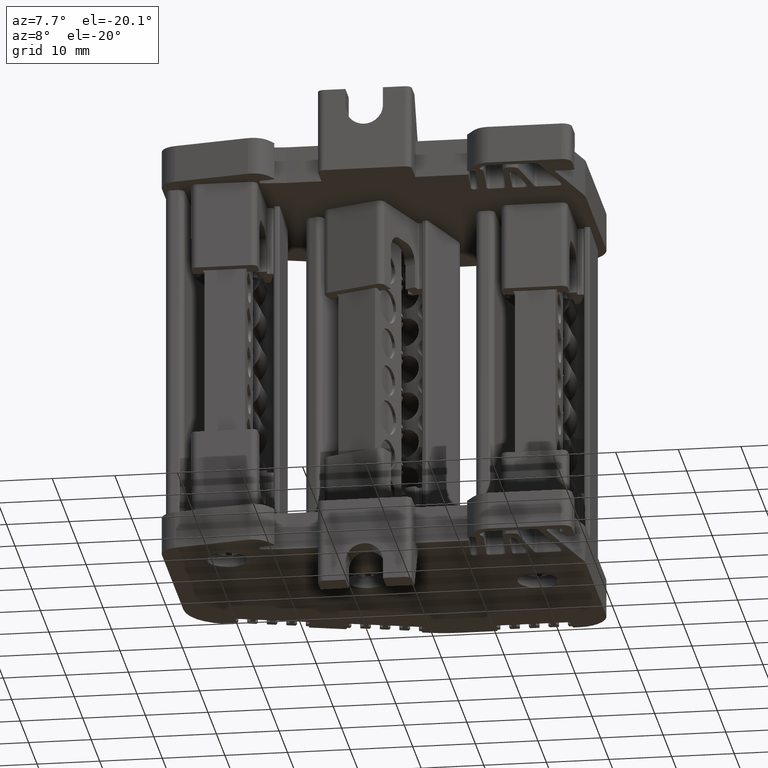
[diagram: clean part render]
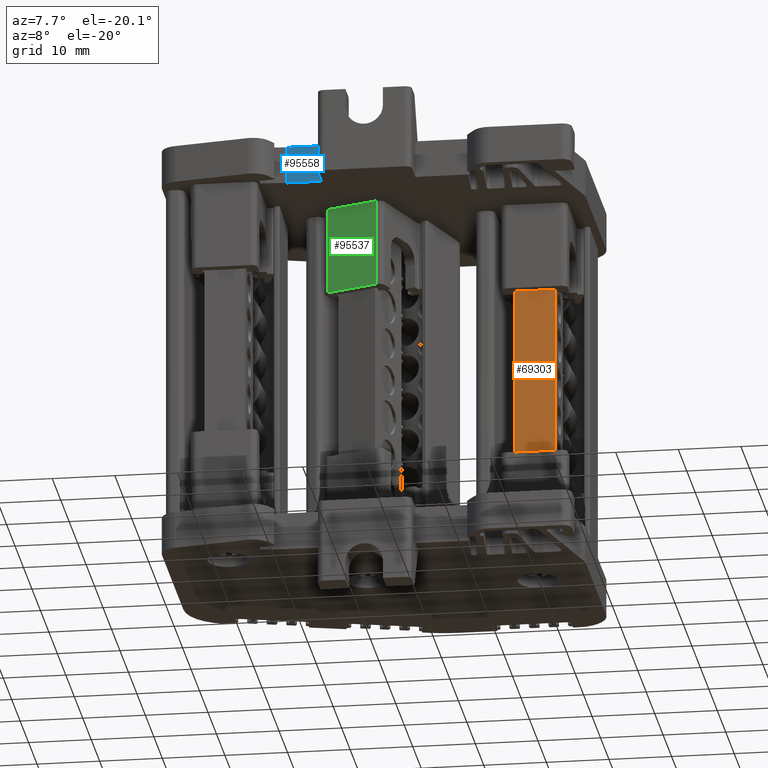
[diagram: same view with three faces highlighted in distinct colors, each labeled with its STEP entity id]
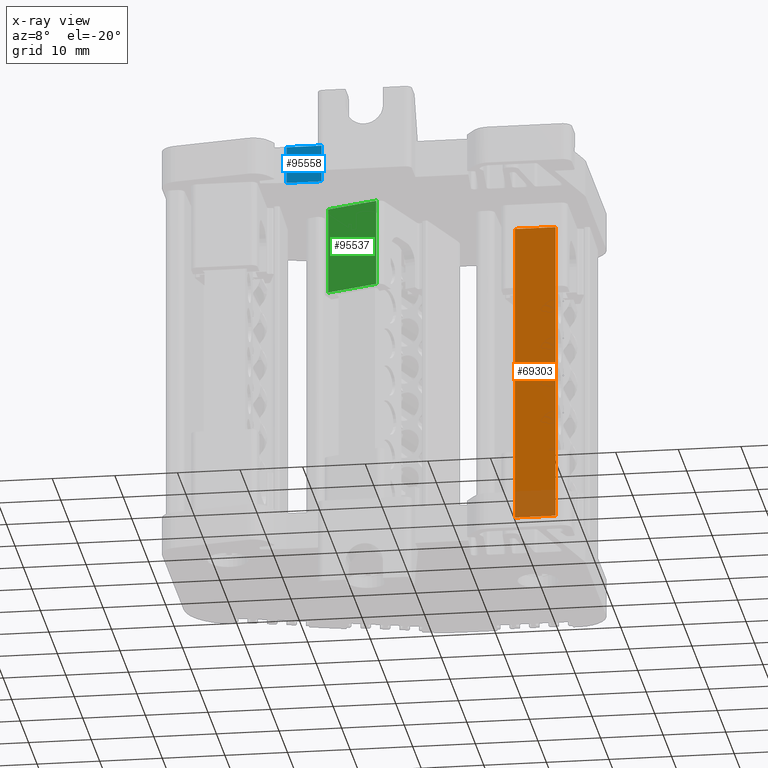
[diagram: x-ray of the same camera — body ghosted, the three highlighted faces saturated]
A machine part, auxiliary view with three faces highlighted in distinct colors.
The next image is the same camera in x-ray (body ghosted, the three faces saturated) — at least one of them is partly hidden behind the body in this view.
Their STEP definitions:

[orange] entity #69303 — the highlighted planar face has unit normal (-0, 1, 0).
#4964 = DIRECTION ( 'NONE',  ( -4.035105583000131400E-013, 1.000000000000000000, 1.333128052394274400E-012 ) ) ;
#5011 = CARTESIAN_POINT ( 'NONE',  ( -270.2292477643139300, 208.4865885413713000, 96.78362721550070100 ) ) ;
#5018 = FACE_OUTER_BOUND ( 'NONE', #78508, .T. ) ;
#5032 = DIRECTION ( 'NONE',  ( 0.0000000000000000000, -1.333128052394274400E-012, 1.000000000000000000 ) ) ;
#5038 = PLANE ( 'NONE',  #23439 ) ;
#14625 = VECTOR ( 'NONE', #92120, 1000.000000000000000 ) ;
#14716 = VECTOR ( 'NONE', #91129, 1000.000000000000000 ) ;
#14754 = VECTOR ( 'NONE', #91184, 1000.000000000000000 ) ;
#15467 = ORIENTED_EDGE ( 'NONE', *, *, #60839, .F. ) ;
#16480 = ORIENTED_EDGE ( 'NONE', *, *, #60794, .T. ) ;
#16488 = ORIENTED_EDGE ( 'NONE', *, *, #60833, .F. ) ;
#16520 = ORIENTED_EDGE ( 'NONE', *, *, #71500, .F. ) ;
#23439 = AXIS2_PLACEMENT_3D ( 'NONE', #5011, #4964, #5032 ) ;
#33512 = VECTOR ( 'NONE', #34422, 1000.000000000000000 ) ;
#34358 = LINE ( 'NONE', #34454, #33512 ) ;
#34422 = DIRECTION ( 'NONE',  ( 1.000000000000000000, 4.035105583000131400E-013, 5.379312447070228400E-025 ) ) ;
#34454 = CARTESIAN_POINT ( 'NONE',  ( -270.2292477643139300, 208.4865885413713000, 96.78362721550070100 ) ) ;
#36823 = VERTEX_POINT ( 'NONE', #85727 ) ;
#36834 = VERTEX_POINT ( 'NONE', #85643 ) ;
#50799 = CARTESIAN_POINT ( 'NONE',  ( -270.2292477643156300, 208.4865885414361100, 48.14122990646641400 ) ) ;
#50842 = CARTESIAN_POINT ( 'NONE',  ( -276.7292477643140400, 208.4865885414348600, 48.14122990646641400 ) ) ;
#60794 = EDGE_CURVE ( 'NONE', #75402, #36823, #92096, .T. ) ;
#60833 = EDGE_CURVE ( 'NONE', #75402, #75468, #91141, .T. ) ;
#60839 = EDGE_CURVE ( 'NONE', #75468, #36834, #91175, .T. ) ;
#69303 = ADVANCED_FACE ( 'NONE', ( #5018 ), #5038, .F. ) ;
#71500 = EDGE_CURVE ( 'NONE', #36834, #36823, #34358, .T. ) ;
#75402 = VERTEX_POINT ( 'NONE', #50799 ) ;
#75468 = VERTEX_POINT ( 'NONE', #50842 ) ;
#78508 = EDGE_LOOP ( 'NONE', ( #16480, #16520, #15467, #16488 ) ) ;
#85643 = CARTESIAN_POINT ( 'NONE',  ( -276.7292477643140400, 208.4865885413903200, 96.78362721550070100 ) ) ;
#85727 = CARTESIAN_POINT ( 'NONE',  ( -270.2292477643139300, 208.4865885414145300, 96.78362721550070100 ) ) ;
#91124 = CARTESIAN_POINT ( 'NONE',  ( -270.4169902369251300, 208.4865885414361300, 48.14122990646641400 ) ) ;
#91129 = DIRECTION ( 'NONE',  ( -1.000000000000000000, 2.763709470186517000E-032, 3.469446951942104800E-018 ) ) ;
#91141 = LINE ( 'NONE', #91124, #14716 ) ;
#91169 = CARTESIAN_POINT ( 'NONE',  ( -276.7292477643140400, 208.4865885413686900, 96.78362721550070100 ) ) ;
#91175 = LINE ( 'NONE', #91169, #14754 ) ;
#91184 = DIRECTION ( 'NONE',  ( 0.0000000000000000000, -1.333128052394274400E-012, 1.000000000000000000 ) ) ;
#92096 = LINE ( 'NONE', #92100, #14625 ) ;
#92100 = CARTESIAN_POINT ( 'NONE',  ( -270.2292477643139300, 208.4865885414361300, 96.78362721551269500 ) ) ;
#92120 = DIRECTION ( 'NONE',  ( -5.048709793414475600E-028, -2.037207707435419100E-040, 1.000000000000000000 ) ) ;

[blue] entity #95558 — the highlighted planar face has unit normal (-0, -1, 0).
#2423 = VERTEX_POINT ( 'NONE', #44019 ) ;
#2425 = VERTEX_POINT ( 'NONE', #44054 ) ;
#3784 = EDGE_CURVE ( 'NONE', #2423, #2425, #94939, .T. ) ;
#4644 = EDGE_CURVE ( 'NONE', #2425, #16405, #56925, .T. ) ;
#4649 = EDGE_CURVE ( 'NONE', #2423, #16395, #56991, .T. ) ;
#4741 = EDGE_CURVE ( 'NONE', #16405, #16395, #39268, .T. ) ;
#16395 = VERTEX_POINT ( 'NONE', #64494 ) ;
#16405 = VERTEX_POINT ( 'NONE', #64470 ) ;
#37848 = EDGE_LOOP ( 'NONE', ( #79576, #79613, #77737, #77736 ) ) ;
#39268 = B_SPLINE_CURVE_WITH_KNOTS ( 'NONE', 3,
 ( #57107, #57131, #57132, #57133 ),
 .UNSPECIFIED., .F., .F.,
 ( 4, 4 ),
 ( 0.0000000000000000000, 1.000000000000000000 ),
 .UNSPECIFIED. ) ;
#44019 = CARTESIAN_POINT ( 'NONE',  ( -305.3899390484841100, 192.1430531581702300, 106.3124285608489600 ) ) ;
#44054 = CARTESIAN_POINT ( 'NONE',  ( -310.9649196473989200, 192.1430531581704300, 106.3124285608489600 ) ) ;
#45139 = CARTESIAN_POINT ( 'NONE',  ( -309.1065927810939800, 192.1430531581706000, 106.3124285608489600 ) ) ;
#45150 = CARTESIAN_POINT ( 'NONE',  ( -307.2482659147889900, 192.1430531581705700, 106.3124285608489600 ) ) ;
#45152 = CARTESIAN_POINT ( 'NONE',  ( -305.3899390484841100, 192.1430531581702300, 106.3124285608489600 ) ) ;
#45204 = CARTESIAN_POINT ( 'NONE',  ( -310.9649196473989200, 192.1430531581704300, 106.3124285608489600 ) ) ;
#56925 = LINE ( 'NONE', #56995, #61646 ) ;
#56969 = CARTESIAN_POINT ( 'NONE',  ( -305.3899390484837100, 192.1430531581701500, 187.3439306799946600 ) ) ;
#56988 = DIRECTION ( 'NONE',  ( 0.0000000000000000000, -6.891400851611650500E-015, -1.000000000000000000 ) ) ;
#56991 = LINE ( 'NONE', #56969, #61648 ) ;
#56992 = DIRECTION ( 'NONE',  ( -3.956299522033005100E-015, -0.0000000000000000000, -1.000000000000000000 ) ) ;
#56995 = CARTESIAN_POINT ( 'NONE',  ( -310.9649196473989200, 192.1430531581711400, 187.3439306799946600 ) ) ;
#57107 = CARTESIAN_POINT ( 'NONE',  ( -310.9649196473989200, 192.1430531581703500, 100.3119239351458400 ) ) ;
#57131 = CARTESIAN_POINT ( 'NONE',  ( -309.1065927810940400, 192.1430531581705500, 100.3119239351458300 ) ) ;
#57132 = CARTESIAN_POINT ( 'NONE',  ( -307.2482659147891000, 192.1430531581705200, 100.3119239351458300 ) ) ;
#57133 = CARTESIAN_POINT ( 'NONE',  ( -305.3899390484841100, 192.1430531581702000, 100.3119239351458000 ) ) ;
#57950 = FACE_OUTER_BOUND ( 'NONE', #37848, .T. ) ;
#57963 = DIRECTION ( 'NONE',  ( -4.979014632596830300E-015, -1.000000000000000000, 6.891400851611650500E-015 ) ) ;
#57966 = PLANE ( 'NONE',  #69151 ) ;
#57967 = CARTESIAN_POINT ( 'NONE',  ( -310.9649196473984000, 192.1430531581711400, 187.3439306799946600 ) ) ;
#57972 = DIRECTION ( 'NONE',  ( 0.0000000000000000000, -6.891400851611650500E-015, -1.000000000000000000 ) ) ;
#61646 = VECTOR ( 'NONE', #56988, 1000.000000000000000 ) ;
#61648 = VECTOR ( 'NONE', #56992, 1000.000000000000000 ) ;
#64470 = CARTESIAN_POINT ( 'NONE',  ( -310.9649196473989200, 192.1430531581703500, 100.3119239351458400 ) ) ;
#64494 = CARTESIAN_POINT ( 'NONE',  ( -305.3899390484841100, 192.1430531581702000, 100.3119239351458000 ) ) ;
#69151 = AXIS2_PLACEMENT_3D ( 'NONE', #57967, #57963, #57972 ) ;
#77736 = ORIENTED_EDGE ( 'NONE', *, *, #4741, .T. ) ;
#77737 = ORIENTED_EDGE ( 'NONE', *, *, #4644, .T. ) ;
#79576 = ORIENTED_EDGE ( 'NONE', *, *, #4649, .F. ) ;
#79613 = ORIENTED_EDGE ( 'NONE', *, *, #3784, .T. ) ;
#94939 = B_SPLINE_CURVE_WITH_KNOTS ( 'NONE', 3,
 ( #45152, #45150, #45139, #45204 ),
 .UNSPECIFIED., .F., .F.,
 ( 4, 4 ),
 ( 0.0000000000000000000, 1.000000000000000000 ),
 .UNSPECIFIED. ) ;
#95558 = ADVANCED_FACE ( 'NONE', ( #57950 ), #57966, .T. ) ;

[green] entity #95537 — the highlighted planar face has unit normal (-0.342, -0.9397, -0).
#3943 = EDGE_CURVE ( 'NONE', #16258, #16216, #49235, .T. ) ;
#4014 = EDGE_CURVE ( 'NONE', #16274, #16250, #49508, .T. ) ;
#4022 = EDGE_CURVE ( 'NONE', #16216, #16274, #49633, .T. ) ;
#4785 = EDGE_CURVE ( 'NONE', #16250, #16258, #39300, .T. ) ;
#16216 = VERTEX_POINT ( 'NONE', #64311 ) ;
#16250 = VERTEX_POINT ( 'NONE', #64351 ) ;
#16258 = VERTEX_POINT ( 'NONE', #64348 ) ;
#16274 = VERTEX_POINT ( 'NONE', #64349 ) ;
#38058 = EDGE_LOOP ( 'NONE', ( #76086, #75918, #75868, #76148 ) ) ;
#39300 = B_SPLINE_CURVE_WITH_KNOTS ( 'NONE', 3,
 ( #57235, #57294, #57256, #57216 ),
 .UNSPECIFIED., .F., .F.,
 ( 4, 4 ),
 ( 0.0000000000000000000, 1.000000000000000000 ),
 .UNSPECIFIED. ) ;
#49235 = LINE ( 'NONE', #49301, #61425 ) ;
#49289 = DIRECTION ( 'NONE',  ( 1.180399404563799200E-031, 3.243130806178887600E-031, -1.000000000000000000 ) ) ;
#49301 = CARTESIAN_POINT ( 'NONE',  ( -306.0936225841661000, 205.1488288605710300, 100.3119239351450700 ) ) ;
#49508 = LINE ( 'NONE', #49510, #61468 ) ;
#49510 = CARTESIAN_POINT ( 'NONE',  ( -298.0033134319624500, 202.2042063101010600, 100.3119239351450700 ) ) ;
#49512 = DIRECTION ( 'NONE',  ( -1.180399404563799200E-031, -3.243130806178887600E-031, 1.000000000000000000 ) ) ;
#49601 = CARTESIAN_POINT ( 'NONE',  ( -331.9373524519304500, 214.5551479919166400, 86.29336666203809600 ) ) ;
#49606 = DIRECTION ( 'NONE',  ( 0.9396929629877320800, -0.3420192031324216200, 0.0000000000000000000 ) ) ;
#49633 = LINE ( 'NONE', #49601, #61478 ) ;
#57216 = CARTESIAN_POINT ( 'NONE',  ( -306.0936225841660400, 205.1488288605710900, 100.3119239351457000 ) ) ;
#57235 = CARTESIAN_POINT ( 'NONE',  ( -298.0033134319624500, 202.2042063101010000, 100.3119239351457000 ) ) ;
#57256 = CARTESIAN_POINT ( 'NONE',  ( -303.3968528667649000, 204.1672880104143500, 100.3119239351456700 ) ) ;
#57294 = CARTESIAN_POINT ( 'NONE',  ( -300.7000831493637100, 203.1857471602577300, 100.3119239351456700 ) ) ;
#57900 = DIRECTION ( 'NONE',  ( 0.9396929629877320800, -0.3420192031324216200, 0.0000000000000000000 ) ) ;
#57904 = FACE_OUTER_BOUND ( 'NONE', #38058, .T. ) ;
#57909 = CARTESIAN_POINT ( 'NONE',  ( -331.9373524519304500, 214.5551479919166400, 100.3119239351450700 ) ) ;
#57918 = DIRECTION ( 'NONE',  ( -0.3420192031324216800, -0.9396929629877321900, -3.451266460341927100E-031 ) ) ;
#57940 = PLANE ( 'NONE',  #69152 ) ;
#61425 = VECTOR ( 'NONE', #49289, 1000.000000000000000 ) ;
#61468 = VECTOR ( 'NONE', #49512, 1000.000000000000000 ) ;
#61478 = VECTOR ( 'NONE', #49606, 1000.000000000000100 ) ;
#64311 = CARTESIAN_POINT ( 'NONE',  ( -306.0936225841660400, 205.1488288605709200, 86.29336666203809600 ) ) ;
#64348 = CARTESIAN_POINT ( 'NONE',  ( -306.0936225841660400, 205.1488288605710900, 100.3119239351457000 ) ) ;
#64349 = CARTESIAN_POINT ( 'NONE',  ( -298.0033134319624500, 202.2042063101010000, 86.29336666203809600 ) ) ;
#64351 = CARTESIAN_POINT ( 'NONE',  ( -298.0033134319624500, 202.2042063101010000, 100.3119239351457000 ) ) ;
#69152 = AXIS2_PLACEMENT_3D ( 'NONE', #57909, #57918, #57900 ) ;
#75868 = ORIENTED_EDGE ( 'NONE', *, *, #4785, .T. ) ;
#75918 = ORIENTED_EDGE ( 'NONE', *, *, #4014, .T. ) ;
#76086 = ORIENTED_EDGE ( 'NONE', *, *, #4022, .T. ) ;
#76148 = ORIENTED_EDGE ( 'NONE', *, *, #3943, .T. ) ;
#95537 = ADVANCED_FACE ( 'NONE', ( #57904 ), #57940, .T. ) ;